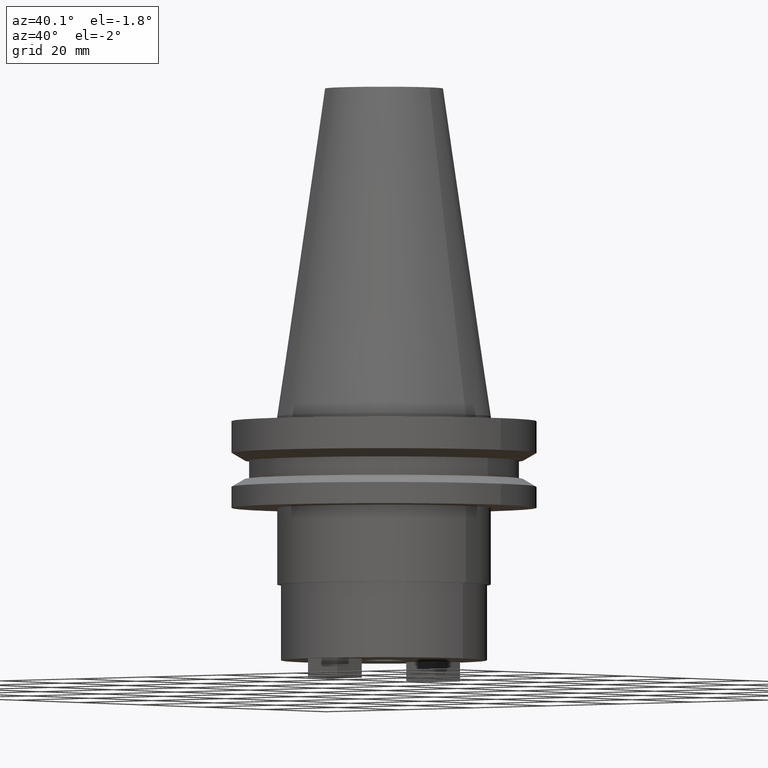
[diagram: clean part render]
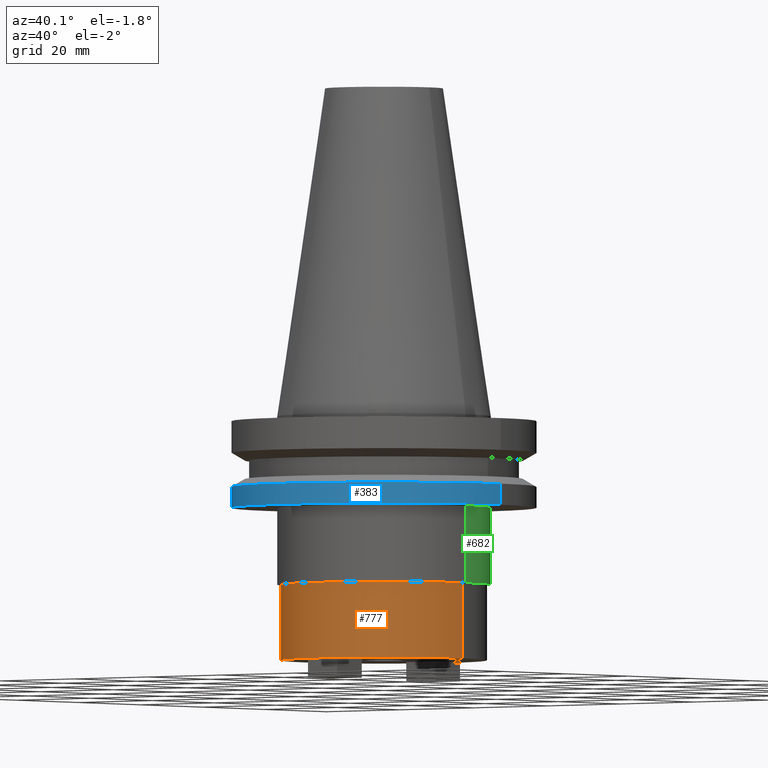
[diagram: same view with three faces highlighted in distinct colors, each labeled with its STEP entity id]
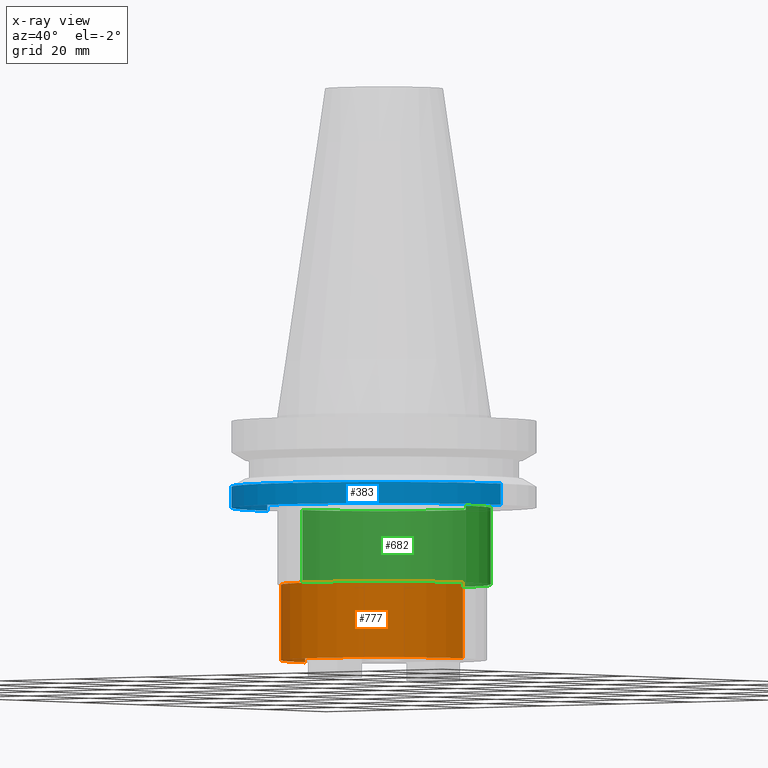
[diagram: x-ray of the same camera — body ghosted, the three highlighted faces saturated]
A machine part, auxiliary view with three faces highlighted in distinct colors.
The next image is the same camera in x-ray (body ghosted, the three faces saturated) — at least one of them is partly hidden behind the body in this view.
Their STEP definitions:

[orange] entity #777 — the highlighted cylindrical surface (partial cylindrical patch) has radius 21.45 mm, axis along (-0, -0, 1).
#28 = DIRECTION ( 'NONE',  ( -0.000000000000000000, -0.000000000000000000, 1.000000000000000000 ) ) ;
#56 = LINE ( 'NONE', #903, #131 ) ;
#81 = EDGE_CURVE ( 'NONE', #821, #633, #591, .T. ) ;
#105 = CARTESIAN_POINT ( 'NONE',  ( -21.44999999999999929, 2.626867384171072557E-15, -35.04999999999999716 ) ) ;
#112 = CARTESIAN_POINT ( 'NONE',  ( 0.000000000000000000, 0.000000000000000000, 0.000000000000000000 ) ) ;
#131 = VECTOR ( 'NONE', #142, 1000.000000000000000 ) ;
#138 = VERTEX_POINT ( 'NONE', #618 ) ;
#142 = DIRECTION ( 'NONE',  ( -0.000000000000000000, -0.000000000000000000, 1.000000000000000000 ) ) ;
#150 = AXIS2_PLACEMENT_3D ( 'NONE', #112, #866, #706 ) ;
#192 = CARTESIAN_POINT ( 'NONE',  ( 21.44999999999999929, 0.000000000000000000, -50.79999999999999716 ) ) ;
#197 = EDGE_CURVE ( 'NONE', #633, #862, #504, .T. ) ;
#214 = VECTOR ( 'NONE', #1077, 1000.000000000000000 ) ;
#240 = EDGE_CURVE ( 'NONE', #138, #821, #952, .T. ) ;
#270 = CARTESIAN_POINT ( 'NONE',  ( 0.000000000000000000, 0.000000000000000000, -35.04999999999999716 ) ) ;
#308 = CARTESIAN_POINT ( 'NONE',  ( 21.44999999999999929, 0.000000000000000000, 0.000000000000000000 ) ) ;
#362 = FACE_OUTER_BOUND ( 'NONE', #1047, .T. ) ;
#439 = CARTESIAN_POINT ( 'NONE',  ( 21.44999999999999929, 0.000000000000000000, -35.04999999999999716 ) ) ;
#462 = ORIENTED_EDGE ( 'NONE', *, *, #240, .T. ) ;
#496 = EDGE_CURVE ( 'NONE', #138, #862, #56, .T. ) ;
#504 = CIRCLE ( 'NONE', #586, 21.44999999999999929 ) ;
#521 = ORIENTED_EDGE ( 'NONE', *, *, #496, .F. ) ;
#586 = AXIS2_PLACEMENT_3D ( 'NONE', #270, #605, #945 ) ;
#591 = LINE ( 'NONE', #308, #214 ) ;
#605 = DIRECTION ( 'NONE',  ( 0.000000000000000000, 0.000000000000000000, -1.000000000000000000 ) ) ;
#612 = CARTESIAN_POINT ( 'NONE',  ( 0.000000000000000000, 0.000000000000000000, -50.79999999999999716 ) ) ;
#618 = CARTESIAN_POINT ( 'NONE',  ( -21.44999999999999929, 2.626867384171072557E-15, -50.79999999999999716 ) ) ;
#633 = VERTEX_POINT ( 'NONE', #439 ) ;
#698 = AXIS2_PLACEMENT_3D ( 'NONE', #612, #28, #858 ) ;
#706 = DIRECTION ( 'NONE',  ( 1.000000000000000000, 0.000000000000000000, 0.000000000000000000 ) ) ;
#777 = ADVANCED_FACE ( 'NONE', ( #362 ), #788, .T. ) ;
#788 = CYLINDRICAL_SURFACE ( 'NONE', #150, 21.44999999999999929 ) ;
#821 = VERTEX_POINT ( 'NONE', #192 ) ;
#858 = DIRECTION ( 'NONE',  ( 1.000000000000000000, 0.000000000000000000, 0.000000000000000000 ) ) ;
#862 = VERTEX_POINT ( 'NONE', #105 ) ;
#866 = DIRECTION ( 'NONE',  ( -0.000000000000000000, -0.000000000000000000, 1.000000000000000000 ) ) ;
#893 = ORIENTED_EDGE ( 'NONE', *, *, #197, .T. ) ;
#903 = CARTESIAN_POINT ( 'NONE',  ( -21.44999999999999929, 2.626867384171072557E-15, 0.000000000000000000 ) ) ;
#945 = DIRECTION ( 'NONE',  ( 1.000000000000000000, 0.000000000000000000, 0.000000000000000000 ) ) ;
#952 = CIRCLE ( 'NONE', #698, 21.44999999999999929 ) ;
#973 = ORIENTED_EDGE ( 'NONE', *, *, #81, .T. ) ;
#1047 = EDGE_LOOP ( 'NONE', ( #521, #462, #973, #893 ) ) ;
#1077 = DIRECTION ( 'NONE',  ( -0.000000000000000000, -0.000000000000000000, 1.000000000000000000 ) ) ;

[blue] entity #383 — the highlighted cylindrical surface (partial cylindrical patch) has radius 31.75 mm, axis along (-0, -0, 1).
#5 = CARTESIAN_POINT ( 'NONE',  ( 0.000000000000000000, 0.000000000000000000, -19.04999999999999716 ) ) ;
#47 = CYLINDRICAL_SURFACE ( 'NONE', #758, 31.75000000000000000 ) ;
#70 = EDGE_CURVE ( 'NONE', #278, #970, #236, .T. ) ;
#102 = ORIENTED_EDGE ( 'NONE', *, *, #946, .T. ) ;
#136 = LINE ( 'NONE', #398, #525 ) ;
#137 = VERTEX_POINT ( 'NONE', #781 ) ;
#141 = CARTESIAN_POINT ( 'NONE',  ( -31.75000000000000000, 3.888253587292846476E-15, -14.65472339340266572 ) ) ;
#161 = ORIENTED_EDGE ( 'NONE', *, *, #1036, .F. ) ;
#185 = CIRCLE ( 'NONE', #237, 31.75000000000000000 ) ;
#190 = DIRECTION ( 'NONE',  ( 1.000000000000000000, 0.000000000000000000, 0.000000000000000000 ) ) ;
#205 = EDGE_CURVE ( 'NONE', #278, #1011, #503, .T. ) ;
#222 = ORIENTED_EDGE ( 'NONE', *, *, #205, .T. ) ;
#236 = LINE ( 'NONE', #829, #1075 ) ;
#237 = AXIS2_PLACEMENT_3D ( 'NONE', #526, #260, #599 ) ;
#260 = DIRECTION ( 'NONE',  ( -0.000000000000000000, -0.000000000000000000, 1.000000000000000000 ) ) ;
#278 = VERTEX_POINT ( 'NONE', #635 ) ;
#290 = CARTESIAN_POINT ( 'NONE',  ( 0.000000000000000000, 0.000000000000000000, 68.25000000000000000 ) ) ;
#380 = DIRECTION ( 'NONE',  ( 1.000000000000000000, 0.000000000000000000, 0.000000000000000000 ) ) ;
#382 = DIRECTION ( 'NONE',  ( -0.000000000000000000, -0.000000000000000000, 1.000000000000000000 ) ) ;
#383 = ADVANCED_FACE ( 'NONE', ( #1041 ), #47, .T. ) ;
#398 = CARTESIAN_POINT ( 'NONE',  ( 31.75000000000000000, 0.000000000000000000, 68.25000000000000000 ) ) ;
#497 = DIRECTION ( 'NONE',  ( -0.000000000000000000, -0.000000000000000000, 1.000000000000000000 ) ) ;
#503 = CIRCLE ( 'NONE', #643, 31.74999999999999289 ) ;
#525 = VECTOR ( 'NONE', #382, 1000.000000000000000 ) ;
#526 = CARTESIAN_POINT ( 'NONE',  ( 0.000000000000000000, 0.000000000000000000, -14.65472339340266572 ) ) ;
#599 = DIRECTION ( 'NONE',  ( 1.000000000000000000, 0.000000000000000000, 0.000000000000000000 ) ) ;
#616 = EDGE_LOOP ( 'NONE', ( #932, #222, #102, #161 ) ) ;
#635 = CARTESIAN_POINT ( 'NONE',  ( -31.74999999999999289, 3.888253587292845687E-15, -19.04999999999999716 ) ) ;
#643 = AXIS2_PLACEMENT_3D ( 'NONE', #5, #863, #190 ) ;
#758 = AXIS2_PLACEMENT_3D ( 'NONE', #290, #955, #380 ) ;
#781 = CARTESIAN_POINT ( 'NONE',  ( 31.75000000000000000, 0.000000000000000000, -14.65472339340266572 ) ) ;
#829 = CARTESIAN_POINT ( 'NONE',  ( -31.75000000000000000, 3.888253587292846476E-15, 68.25000000000000000 ) ) ;
#863 = DIRECTION ( 'NONE',  ( -0.000000000000000000, -0.000000000000000000, 1.000000000000000000 ) ) ;
#932 = ORIENTED_EDGE ( 'NONE', *, *, #70, .F. ) ;
#946 = EDGE_CURVE ( 'NONE', #1011, #137, #136, .T. ) ;
#955 = DIRECTION ( 'NONE',  ( -0.000000000000000000, -0.000000000000000000, 1.000000000000000000 ) ) ;
#970 = VERTEX_POINT ( 'NONE', #141 ) ;
#1011 = VERTEX_POINT ( 'NONE', #1014 ) ;
#1014 = CARTESIAN_POINT ( 'NONE',  ( 31.74999999999999289, 0.000000000000000000, -19.04999999999999716 ) ) ;
#1036 = EDGE_CURVE ( 'NONE', #970, #137, #185, .T. ) ;
#1041 = FACE_OUTER_BOUND ( 'NONE', #616, .T. ) ;
#1075 = VECTOR ( 'NONE', #497, 1000.000000000000000 ) ;

[green] entity #682 — the highlighted cylindrical surface (partial cylindrical patch) has radius 22.225 mm, axis along (-0, -0, 1).
#15 = CYLINDRICAL_SURFACE ( 'NONE', #814, 22.22500000000000142 ) ;
#46 = CARTESIAN_POINT ( 'NONE',  ( 0.000000000000000000, 0.000000000000000000, -19.04999999999999716 ) ) ;
#85 = ORIENTED_EDGE ( 'NONE', *, *, #910, .T. ) ;
#129 = CIRCLE ( 'NONE', #921, 22.22500000000000142 ) ;
#173 = VERTEX_POINT ( 'NONE', #180 ) ;
#180 = CARTESIAN_POINT ( 'NONE',  ( 22.22500000000000142, 0.000000000000000000, -19.04999999999999716 ) ) ;
#200 = VECTOR ( 'NONE', #230, 1000.000000000000000 ) ;
#224 = DIRECTION ( 'NONE',  ( 1.000000000000000000, 0.000000000000000000, 0.000000000000000000 ) ) ;
#230 = DIRECTION ( 'NONE',  ( -0.000000000000000000, -0.000000000000000000, 1.000000000000000000 ) ) ;
#288 = VECTOR ( 'NONE', #943, 1000.000000000000000 ) ;
#291 = CARTESIAN_POINT ( 'NONE',  ( -22.22500000000000142, 2.721777511104992849E-15, -19.04999999999999716 ) ) ;
#310 = CARTESIAN_POINT ( 'NONE',  ( 22.22499999999999787, 0.000000000000000000, -35.04999999999999716 ) ) ;
#346 = DIRECTION ( 'NONE',  ( -0.000000000000000000, -0.000000000000000000, 1.000000000000000000 ) ) ;
#443 = EDGE_CURVE ( 'NONE', #173, #701, #129, .T. ) ;
#511 = CARTESIAN_POINT ( 'NONE',  ( 0.000000000000000000, 0.000000000000000000, 68.25000000000000000 ) ) ;
#542 = EDGE_CURVE ( 'NONE', #546, #678, #939, .T. ) ;
#544 = ORIENTED_EDGE ( 'NONE', *, *, #443, .F. ) ;
#546 = VERTEX_POINT ( 'NONE', #310 ) ;
#558 = DIRECTION ( 'NONE',  ( -0.000000000000000000, -0.000000000000000000, 1.000000000000000000 ) ) ;
#575 = EDGE_LOOP ( 'NONE', ( #774, #85, #544, #1024 ) ) ;
#660 = LINE ( 'NONE', #993, #200 ) ;
#678 = VERTEX_POINT ( 'NONE', #766 ) ;
#682 = ADVANCED_FACE ( 'NONE', ( #838 ), #15, .T. ) ;
#696 = DIRECTION ( 'NONE',  ( 1.000000000000000000, 0.000000000000000000, 0.000000000000000000 ) ) ;
#701 = VERTEX_POINT ( 'NONE', #291 ) ;
#742 = AXIS2_PLACEMENT_3D ( 'NONE', #1000, #1068, #224 ) ;
#748 = EDGE_CURVE ( 'NONE', #546, #173, #879, .T. ) ;
#766 = CARTESIAN_POINT ( 'NONE',  ( -22.22499999999999787, 2.721777511104992454E-15, -35.04999999999999716 ) ) ;
#774 = ORIENTED_EDGE ( 'NONE', *, *, #542, .T. ) ;
#814 = AXIS2_PLACEMENT_3D ( 'NONE', #511, #346, #696 ) ;
#838 = FACE_OUTER_BOUND ( 'NONE', #575, .T. ) ;
#879 = LINE ( 'NONE', #1044, #288 ) ;
#910 = EDGE_CURVE ( 'NONE', #678, #701, #660, .T. ) ;
#921 = AXIS2_PLACEMENT_3D ( 'NONE', #46, #558, #949 ) ;
#939 = CIRCLE ( 'NONE', #742, 22.22499999999999787 ) ;
#943 = DIRECTION ( 'NONE',  ( -0.000000000000000000, -0.000000000000000000, 1.000000000000000000 ) ) ;
#949 = DIRECTION ( 'NONE',  ( 1.000000000000000000, 0.000000000000000000, 0.000000000000000000 ) ) ;
#993 = CARTESIAN_POINT ( 'NONE',  ( -22.22500000000000142, 2.721777511104992849E-15, 68.25000000000000000 ) ) ;
#1000 = CARTESIAN_POINT ( 'NONE',  ( 0.000000000000000000, 0.000000000000000000, -35.04999999999999716 ) ) ;
#1024 = ORIENTED_EDGE ( 'NONE', *, *, #748, .F. ) ;
#1044 = CARTESIAN_POINT ( 'NONE',  ( 22.22500000000000142, 0.000000000000000000, 68.25000000000000000 ) ) ;
#1068 = DIRECTION ( 'NONE',  ( -0.000000000000000000, -0.000000000000000000, 1.000000000000000000 ) ) ;